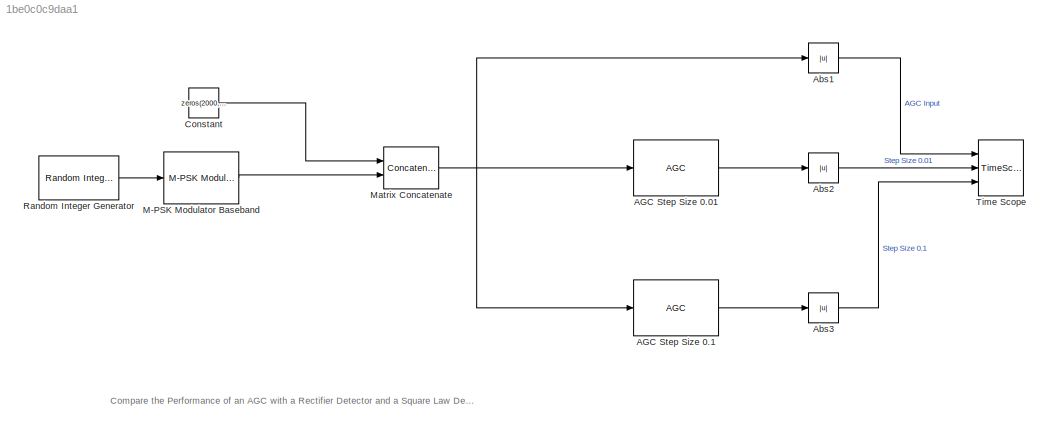
MODEL slx_1be0c0c9daa1
KIND model
BLOCK [Reference] AGC Step Size 0.01   REF=commrfcorlib/AGC
  DetectorMethod = Rectifier
  GainOutputPort = off
  LoopMethod = Linear
  MaximumGain = 15
  Ports = [1, 1]
  SimulateUsing = Code generation
  SourceBlock = commrfcorlib/AGC
  SourceType = AGC
  StepSize = 0.1
  UpdatePeriod = 10
BLOCK [Reference] AGC Step Size 0.1   REF=commrfcorlib/AGC
  DetectorMethod = Rectifier
  GainOutputPort = off
  LoopMethod = Linear
  MaximumGain = 5
  Ports = [1, 1]
  SimulateUsing = Code generation
  SourceBlock = commrfcorlib/AGC
  SourceType = AGC
  StepSize = 0.1
  UpdatePeriod = 10
BLOCK [Abs] Abs1
  SaturateOnIntegerOverflow = off
BLOCK [Abs] Abs2
  SaturateOnIntegerOverflow = off
BLOCK [Abs] Abs3
  SaturateOnIntegerOverflow = off
BLOCK [Constant] Constant
  Value = zeros(2000,1)
BLOCK [Reference] M-PSK Modulator Baseband  REF=commdigbbndpm3/M-PSK
Modulator
Baseband
  Enc = Gray
  InType = Integer
  M = 4
  Mapping = [0:7]
  Ph = pi/4
  Ports = [1, 1]
  SourceBlock = commdigbbndpm3/M-PSK\nModulator\nBaseband
  SourceType = M-PSK Modulator Baseband
  outDtype = double
  outFracLen = 15
  outFracLenMode = Best precision
  outUDDataType = sfix(16)
  outWordLen = 16
BLOCK [Concatenate] Matrix Concatenate
  Mode = Multidimensional array
  Ports = [2, 1]
BLOCK [Reference] Random Integer Generator  REF=commrandsrc2/Random Integer
Generator
  Ports = [0, 1]
  SourceBlock = commrandsrc2/Random Integer\nGenerator
  SourceType = Random Integer Generator
  Ts = 1
  frameBased = on
  mul = 4
  orient = off
  outDataType = double
  sampPerFrame = 1000
  seed = 37
BLOCK [TimeScope] Time Scope
  DefaultConfigurationName = spbscopes.TimeScopeBlockCfg
  NumInputPorts = 3
  Ports = [3]
ANNOTATION (root): Compare the Performance of an AGC with a Rectifier Detector and a Square Law Detector
LINE AGC Step Size 0.01 :1 -> Abs2:1
LINE AGC Step Size 0.1 :1 -> Abs3:1
LINE Abs1:1 -> Time Scope:1
LINE Abs2:1 -> Time Scope:2
LINE Abs3:1 -> Time Scope:3
LINE Constant:1 -> Matrix Concatenate:1
LINE M-PSK Modulator Baseband:1 -> Matrix Concatenate:2
NET Matrix Concatenate:1 -> AGC Step Size 0.01 :1, AGC Step Size 0.1 :1, Abs1:1
LINE Random Integer Generator:1 -> M-PSK Modulator Baseband:1
note: NET lines group one-source signal fan-out (src -> all destinations, sorted); 1:1 wires keep LINE
